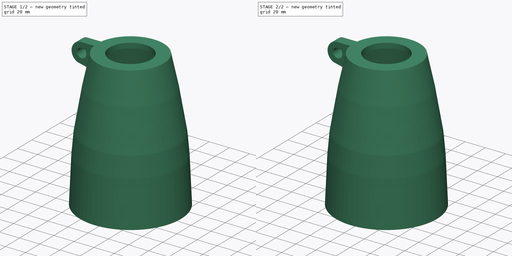
[diagram: build sequence overview — one tinted view per stage of 2, left to right]
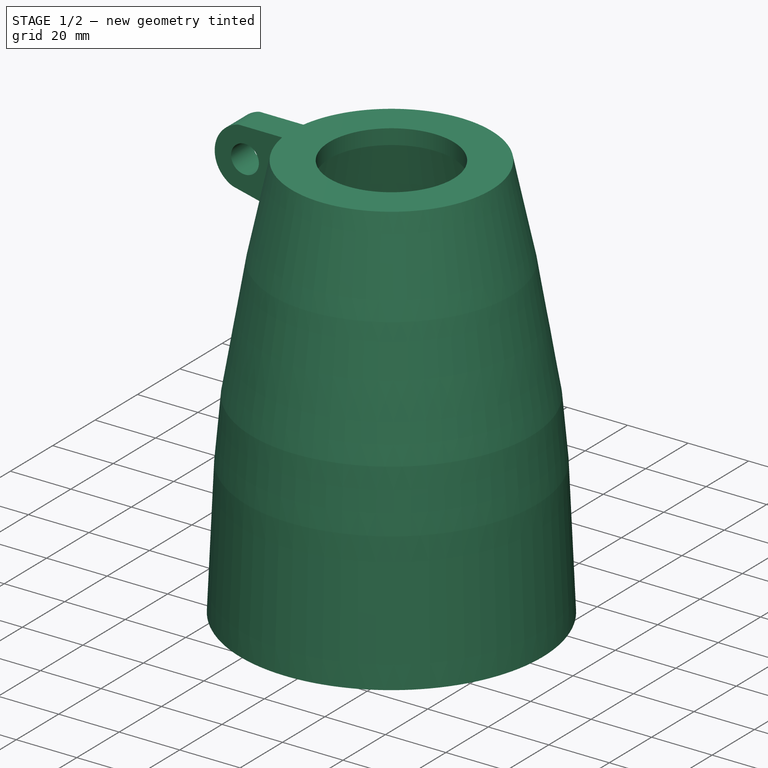
[diagram: stage 1 of 2 — iso view after this stage's code; geometry added in this stage tinted green]
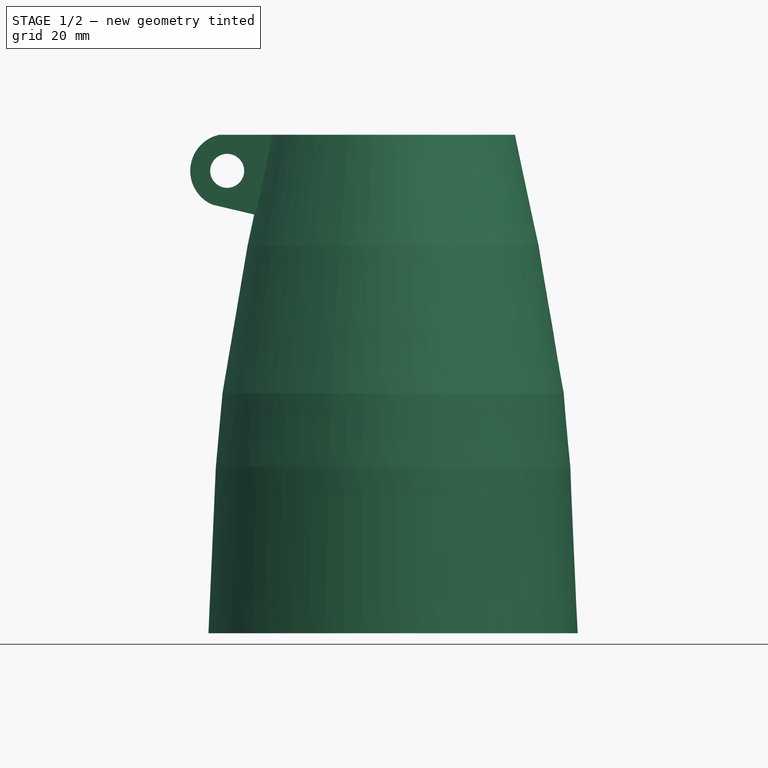
[diagram: stage 1 of 2 — front view after this stage's code; geometry added in this stage tinted green]
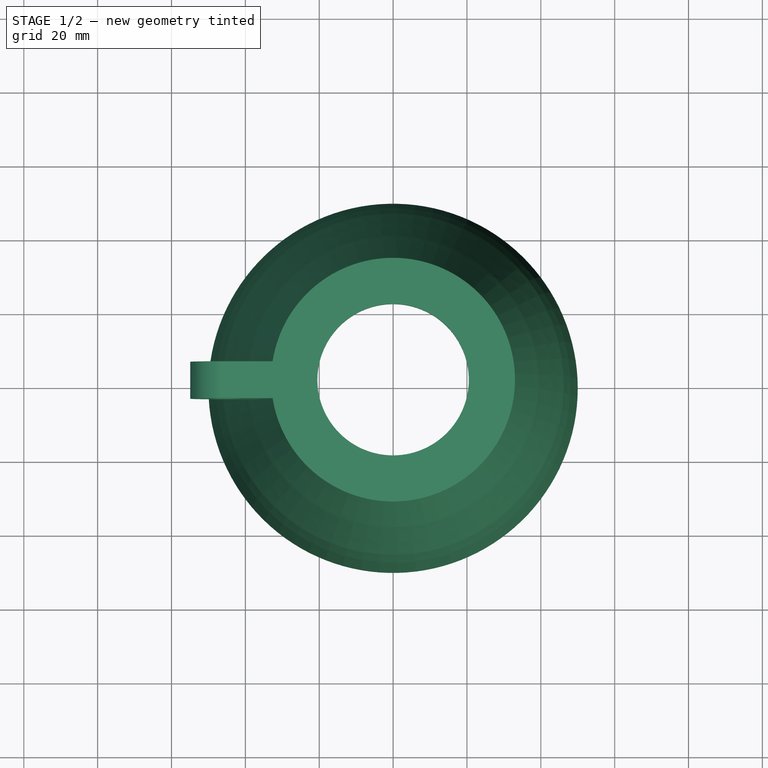
[diagram: stage 1 of 2 — top view after this stage's code; geometry added in this stage tinted green]
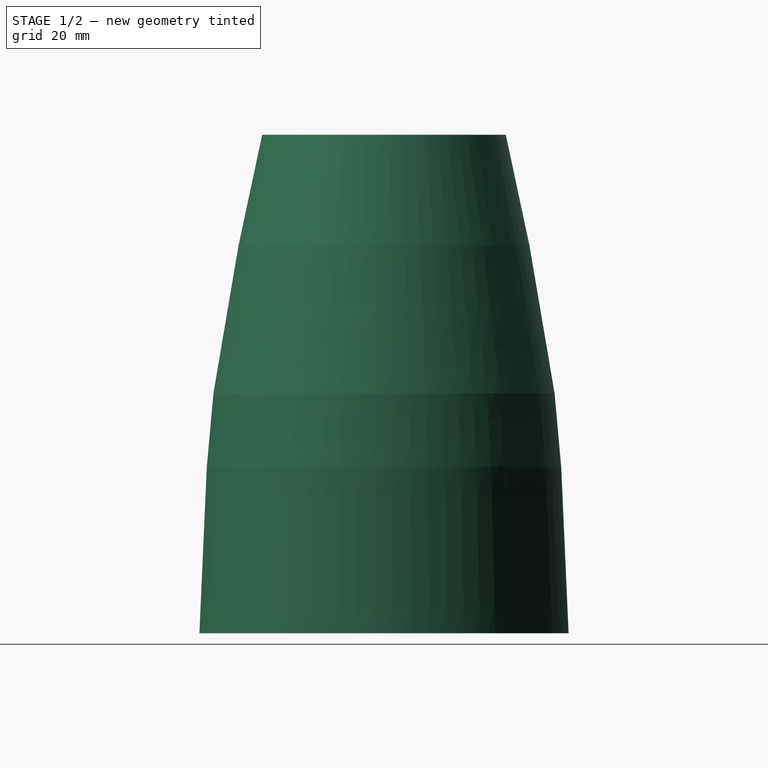
[diagram: stage 1 of 2 — right view after this stage's code; geometry added in this stage tinted green]
FCSTD DOCUMENT  (FreeCAD 0.16R6712 (Git))
Label: abat-jour
License: All rights reserved
LicenseURL: http://en.wikipedia.org/wiki/All_rights_reserved
objects: Sketcher::SketchObject×2, PartDesign::Revolution×1, PartDesign::Pad×1, Part::MultiFuse×1
note: 7 computed .brp shape members not serialized (recipe doc carries the construction recipe); baked Part::Feature solids carry a one-line shape summary decoded from their .brp

FEATURE [Sketcher::SketchObject] Sketch001
  Placement = pos=(0,0,0) rot=(1,0,0;1.5708rad)
  sketch-geometry (13):
    g0: LineSegment StartX=-20.5 StartY=0 StartZ=0 EndX=-33 EndY=0 EndZ=0
    g1: LineSegment StartX=-33 StartY=0 StartZ=0 EndX=-39.4 EndY=-30 EndZ=0
    g2: LineSegment StartX=-39.4 StartY=-30 StartZ=0 EndX=-43.0626 EndY=-51.5445 EndZ=0
    g3: LineSegment StartX=-43.0626 StartY=-51.5445 StartZ=0 EndX=-46.2 EndY=-70 EndZ=0
    g4: LineSegment StartX=-46.2 StartY=-70 StartZ=0 EndX=-48 EndY=-90 EndZ=0
    g5: LineSegment StartX=-48 StartY=-90 StartZ=0 EndX=-50 EndY=-135 EndZ=0
    g6: LineSegment StartX=-50 StartY=-135 StartZ=0 EndX=-49 EndY=-135 EndZ=0
    g7: LineSegment StartX=-49 StartY=-135 StartZ=0 EndX=-47 EndY=-90 EndZ=0
    g8: LineSegment StartX=-47 StartY=-90 StartZ=0 EndX=-45 EndY=-70 EndZ=0
    g9: LineSegment StartX=-45 StartY=-70 StartZ=0 EndX=-38 EndY=-30 EndZ=0
    g10: LineSegment StartX=-38 StartY=-30 StartZ=0 EndX=-30 EndY=-5 EndZ=0
    g11: LineSegment StartX=-30 StartY=-5 StartZ=0 EndX=-20.5 EndY=-5 EndZ=0
    g12: LineSegment StartX=-20.5 StartY=-5 StartZ=0 EndX=-20.5 EndY=0 EndZ=0
  constraints (38):
    c: PointOnObject(g0,g-1)
    c: PointOnObject(g0,g-1)
    c: Coincident(g0,g1)
    c: Coincident(g1,g2)
    c: Coincident(g2,g3)
    c: Coincident(g3,g4)
    c: Coincident(g4,g5)
    c: Coincident(g5,g6)
    c: Horizontal(g6)
    c: Coincident(g6,g7)
    c: Coincident(g7,g8)
    c: Coincident(g8,g9)
    c: Coincident(g9,g10)
    c: Coincident(g10,g11)
    c: Horizontal(g11)
    c: Coincident(g11,g12)
    c: Coincident(g12,g0)
    c: DistanceX(g0,g-1) = 20.5
    c: DistanceX(g11,g-1) = 20.5
    c: DistanceY(g11,g0) = 5
    c: DistanceX(g10,g-1) = 30
    c: DistanceX(g0,g-1) = 33
    c: DistanceY(g1,g0) = 30
    c: DistanceY(g9,g10) = 25
    c: DistanceX(g1,g9) = 1.4
    c: DistanceX(g5,g6) = 1
    c: DistanceX(g4,g7) = 1
    c: DistanceX(g3,g8) = 1.2
    c: DistanceY(g8,g9) = 40
    c: DistanceX(g9,g-1) = 38
    c: DistanceX(g8,g-1) = 45
    c: DistanceX(g7,g-1) = 47
    c: DistanceX(g7,g7) = 2
    c: DistanceY(g7,g4) = 0
    c: DistanceY(g8,g3) = 0
    c: DistanceY(g4,g3) = 20
    c: DistanceY(g5,g4) = 45
    c: Parallel(g3,g2)
FEATURE [PartDesign::Revolution] Revolution
  Angle = 360
  Axis = (0,0,1)
  Base = (0,0,0)
  Placement = pos=(0,0,0) rot=(1,0,0;1.5708rad)
  ReferenceAxis = -> Sketch001 [V_Axis]
  Sketch = -> Sketch001
FEATURE [Sketcher::SketchObject] Sketch002
  Placement = pos=(0,0,0) rot=(1,0,0;1.5708rad)
  sketch-geometry (5):
    g0: LineSegment StartX=-30 StartY=0 StartZ=0 EndX=-47 EndY=0 EndZ=0
    g1: LineSegment StartX=-49 StartY=-18.915 StartZ=0 EndX=-36 EndY=-22 EndZ=0
    g2: Circle CenterX=-44.926 CenterY=-9.78255 CenterZ=0 NormalX=0 NormalY=0 NormalZ=1 Radius=4.6
    g3: LineSegment StartX=-36 StartY=-22 StartZ=0 EndX=-30 EndY=0 EndZ=0
    g4: ArcOfCircle CenterX=-44.926 CenterY=-9.78255 CenterZ=0 NormalX=0 NormalY=0 NormalZ=1 Radius=10 StartAngle=1.77972 EndAngle=4.29278
  constraints (14):
    c: PointOnObject(g0,g-1)
    c: PointOnObject(g0,g-1)
    c: DistanceX(g0,g-1) = 30
    c: DistanceX(g1,g-1) = 36
    c: DistanceY(g1,g0) = 22
    c: DistanceX(g1,g1) = 13
    c: DistanceX(g0,g0) = 17
    c: Radius(g2) = 4.6
    c: Coincident(g3,g1)
    c: Coincident(g3,g0)
    c: Coincident(g4,g2)
    c: Coincident(g4,g1)
    c: Coincident(g4,g0)
    c: Distance(g2,g0) = 10
FEATURE [PartDesign::Pad] Pad
  Length = 5
  Length2 = 5
  Placement = pos=(0,0,0) rot=(1,0,0;1.5708rad)
  Sketch = -> Sketch002
  Type = 4
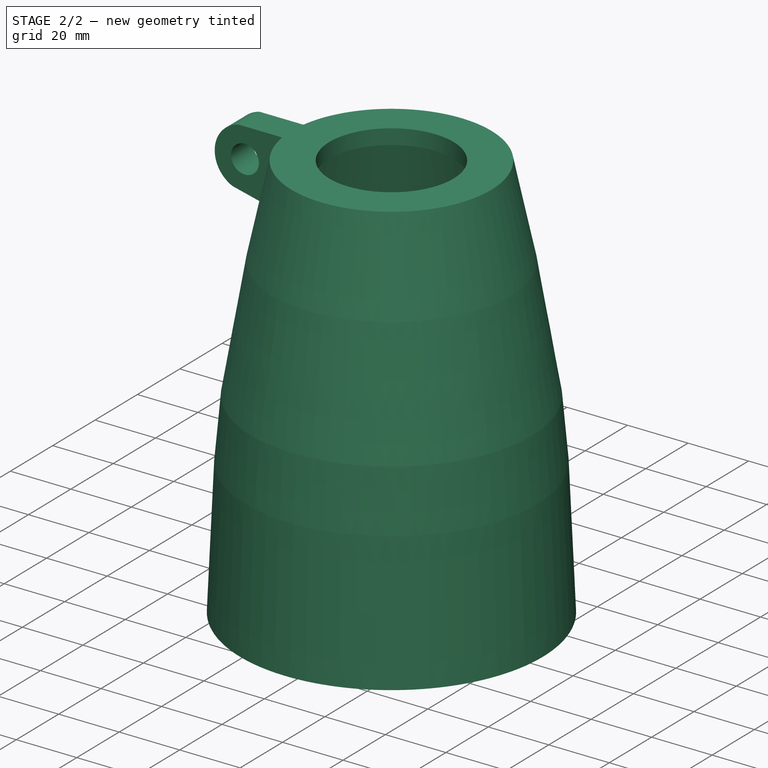
[diagram: stage 2 of 2 — iso view after this stage's code; geometry added in this stage tinted green]
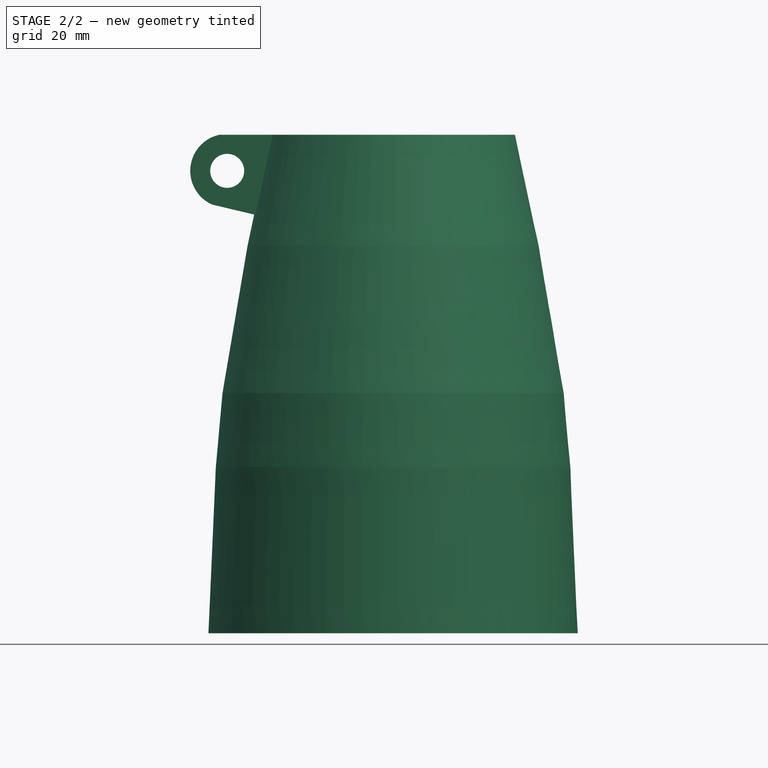
[diagram: stage 2 of 2 — front view after this stage's code; geometry added in this stage tinted green]
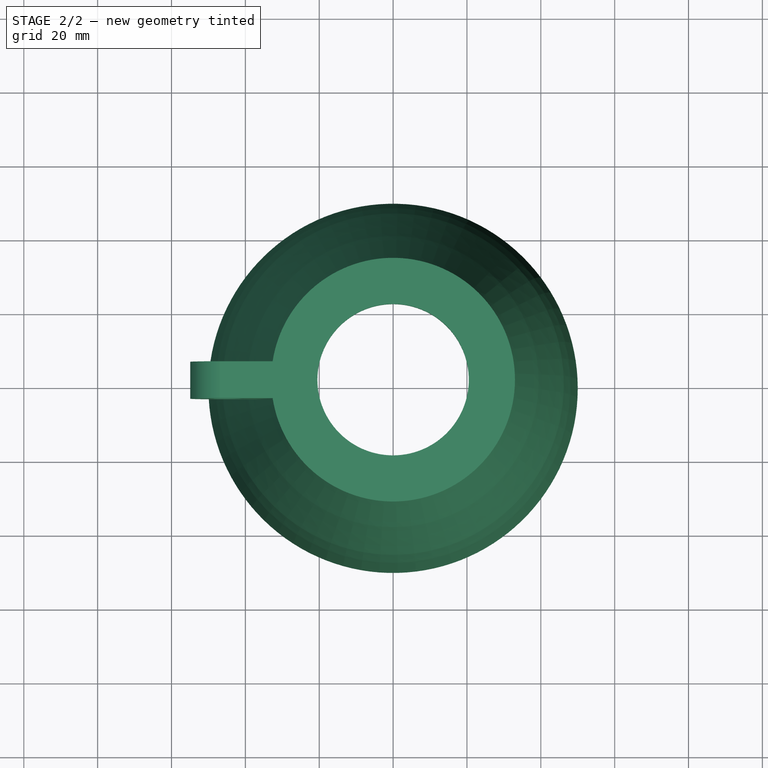
[diagram: stage 2 of 2 — top view after this stage's code; geometry added in this stage tinted green]
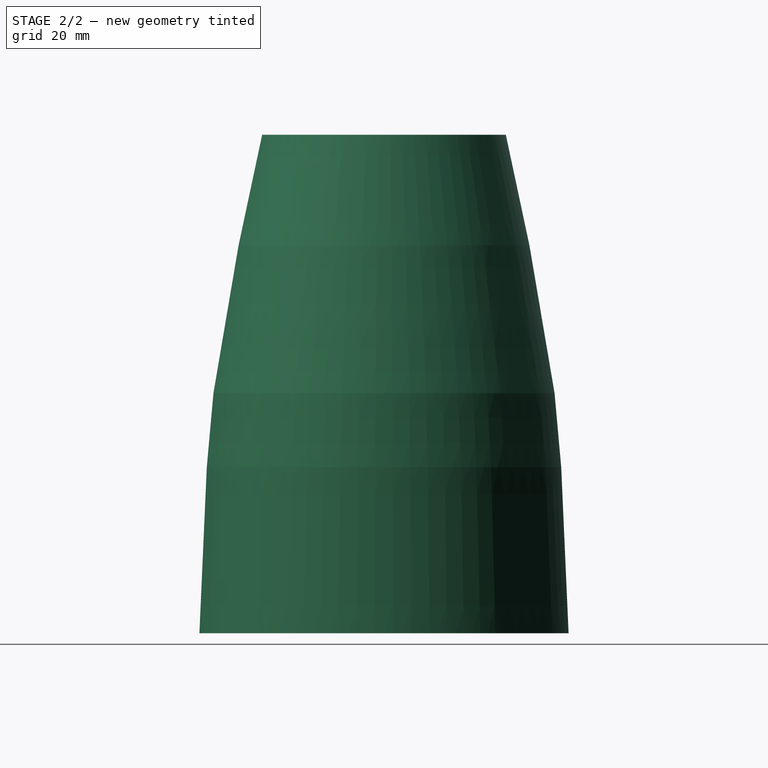
[diagram: stage 2 of 2 — right view after this stage's code; geometry added in this stage tinted green]
FEATURE [Part::MultiFuse] Fusion
  Shapes = -> [Revolution,Pad]
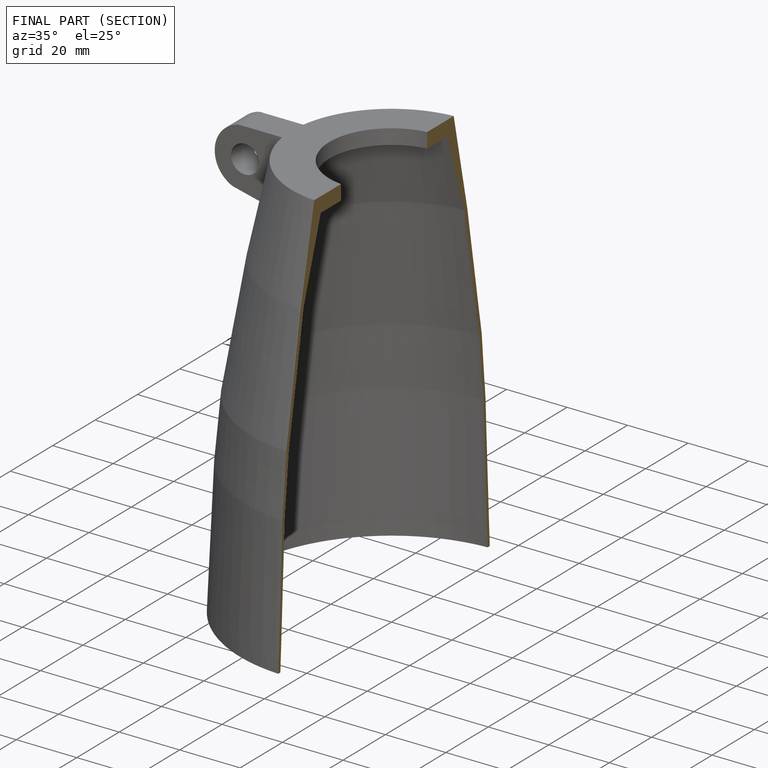
[diagram: finished part — half-section view (interior)]
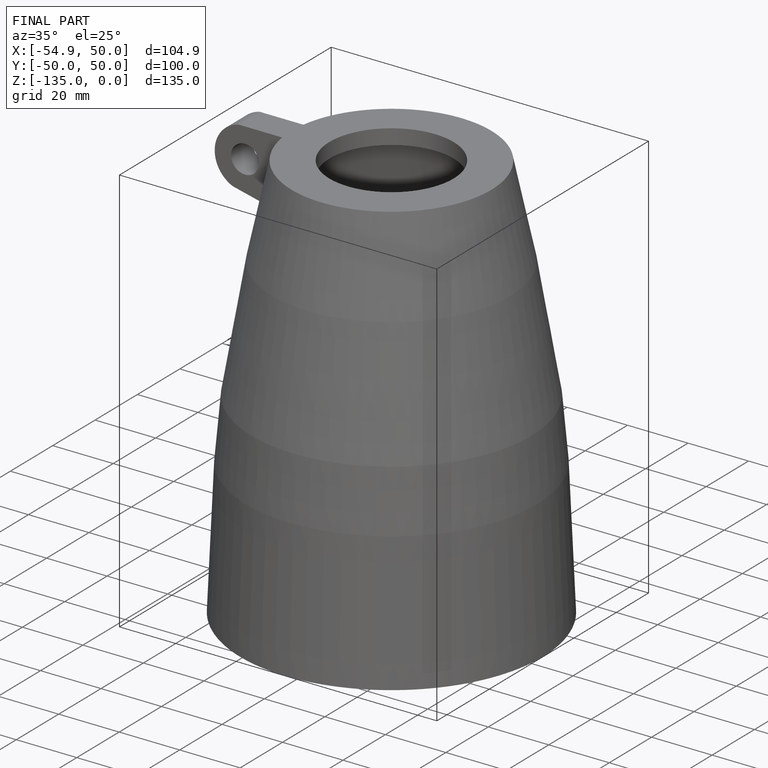
[diagram: finished part — iso view with bounding-box wireframe]
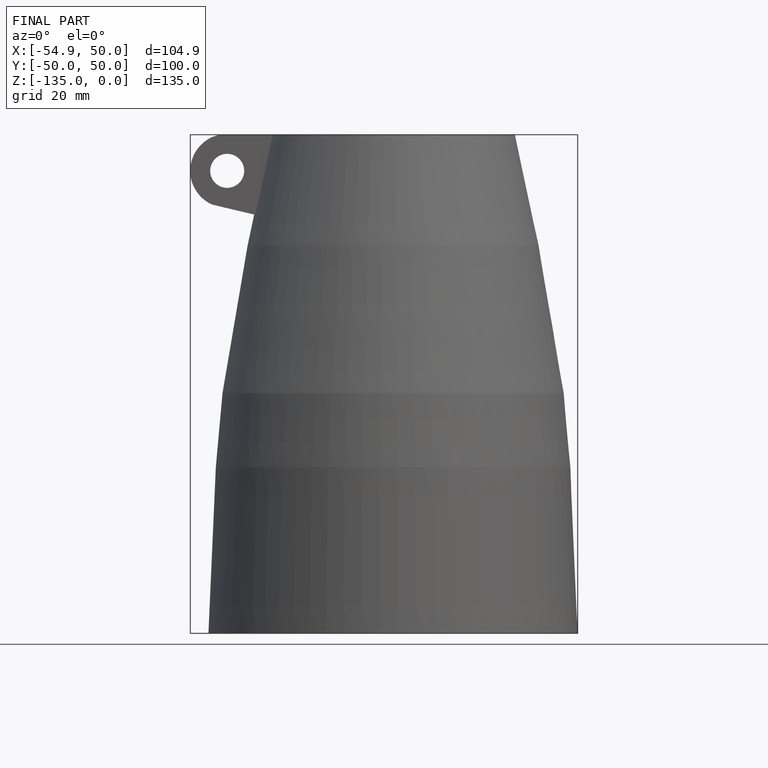
[diagram: finished part — front view with bounding-box wireframe]
